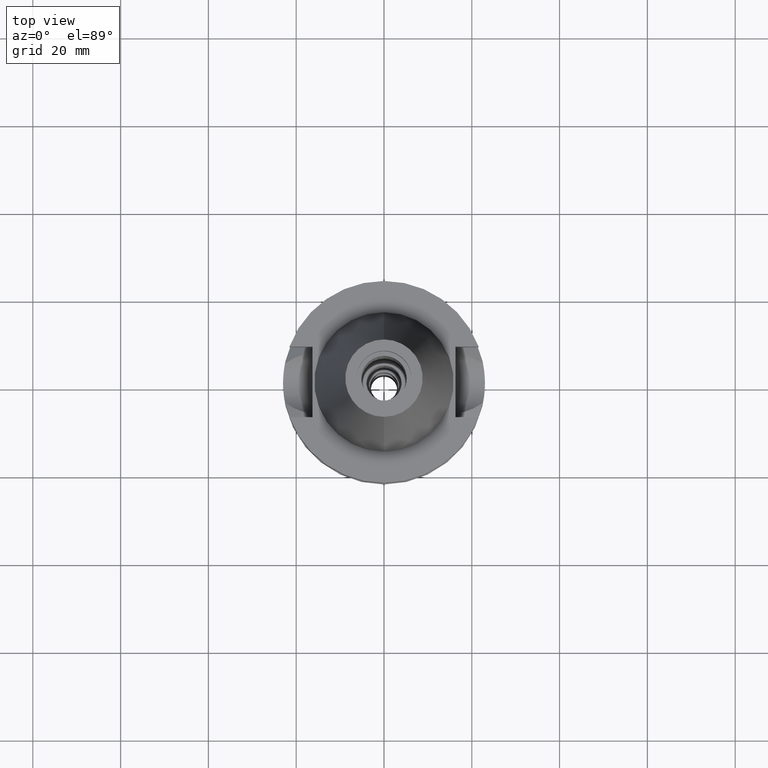
[diagram: clean part render]
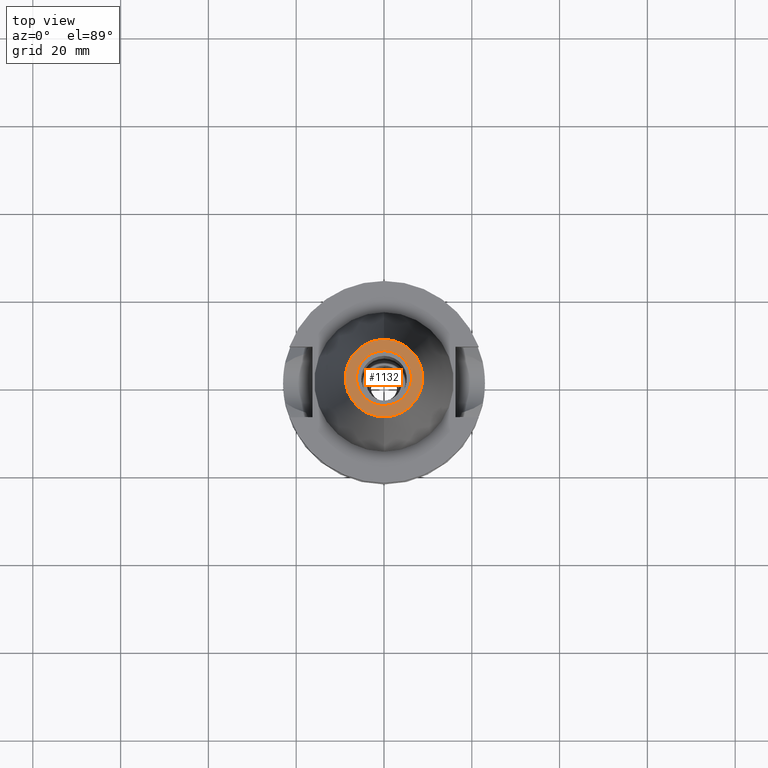
[diagram: same view with one face highlighted and labeled with its STEP entity id]
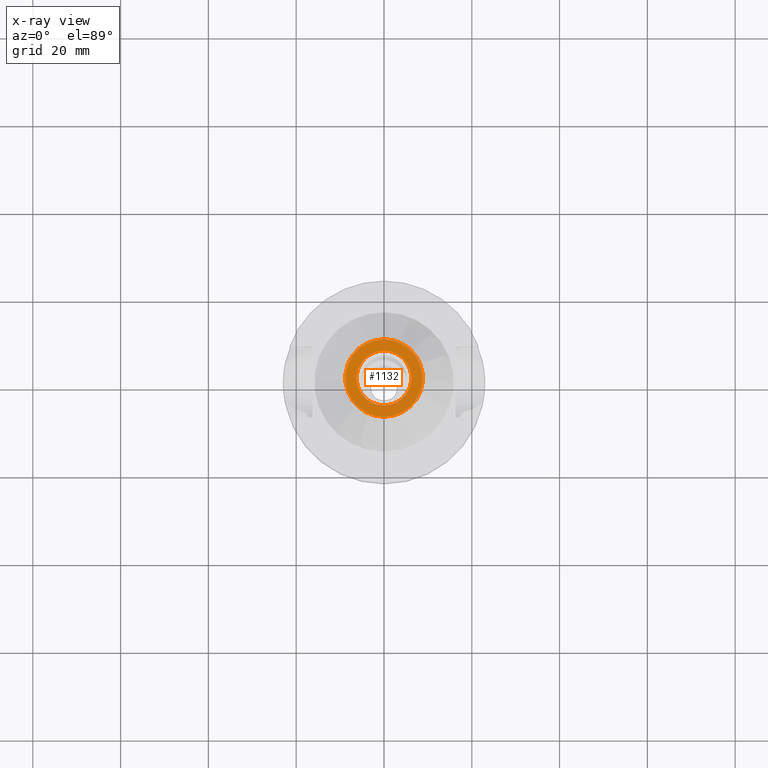
[diagram: x-ray of the same camera — body ghosted, the highlighted face saturated]
A machine part, top view. The second image highlights one B-rep face of the part: STEP entity #1132.
The next image is the same camera in x-ray: the body ghosted, the highlighted face saturated — about 0% of this face is hidden behind the body in this view.
In plain terms, the highlighted planar face has unit normal (0, 0, -1).
Its self-contained STEP definition (entity closure, byte-faithful):
#17=CARTESIAN_POINT('',(0.E0,1.521011324541E-14,4.84E1));
#18=DIRECTION('',(0.E0,0.E0,-1.E0));
#19=DIRECTION('',(0.E0,-1.E0,0.E0));
#20=AXIS2_PLACEMENT_3D('',#17,#18,#19);
#26=CARTESIAN_POINT('',(0.E0,1.521011324541E-14,4.84E1));
#27=DIRECTION('',(0.E0,0.E0,-1.E0));
#28=DIRECTION('',(0.E0,1.E0,0.E0));
#29=AXIS2_PLACEMENT_3D('',#26,#27,#28);
#34=CARTESIAN_POINT('',(0.E0,1.911306259429E-14,4.84E1));
#35=DIRECTION('',(0.E0,0.E0,1.E0));
#36=DIRECTION('',(0.E0,-1.E0,0.E0));
#37=AXIS2_PLACEMENT_3D('',#34,#35,#36);
#42=CARTESIAN_POINT('',(0.E0,1.911306259429E-14,4.84E1));
#43=DIRECTION('',(0.E0,0.E0,1.E0));
#44=DIRECTION('',(0.E0,1.E0,0.E0));
#45=AXIS2_PLACEMENT_3D('',#42,#43,#44);
#971=CARTESIAN_POINT('',(0.E0,-8.816791732783E0,4.84E1));
#972=CARTESIAN_POINT('',(0.E0,8.816791732783E0,4.84E1));
#973=VERTEX_POINT('',#971);
#974=VERTEX_POINT('',#972);
#975=CARTESIAN_POINT('',(0.E0,-6.25E0,4.84E1));
#976=CARTESIAN_POINT('',(0.E0,6.25E0,4.84E1));
#977=VERTEX_POINT('',#975);
#978=VERTEX_POINT('',#976);
#1115=CARTESIAN_POINT('',(0.E0,1.817375849935E-14,4.84E1));
#1116=DIRECTION('',(0.E0,0.E0,-1.E0));
#1117=DIRECTION('',(0.E0,-1.E0,0.E0));
#1118=AXIS2_PLACEMENT_3D('',#1115,#1116,#1117);
#1119=PLANE('',#1118);
#1121=ORIENTED_EDGE('',*,*,#1120,.T.);
#1123=ORIENTED_EDGE('',*,*,#1122,.T.);
#1124=EDGE_LOOP('',(#1121,#1123));
#1125=FACE_OUTER_BOUND('',#1124,.F.);
#1127=ORIENTED_EDGE('',*,*,#1126,.T.);
#1129=ORIENTED_EDGE('',*,*,#1128,.T.);
#1130=EDGE_LOOP('',(#1127,#1129));
#1131=FACE_BOUND('',#1130,.F.);
#21=CIRCLE('',#20,8.816791732783E0);
#30=CIRCLE('',#29,8.816791732783E0);
#38=CIRCLE('',#37,6.25E0);
#46=CIRCLE('',#45,6.25E0);
#1120=EDGE_CURVE('',#973,#974,#21,.T.);
#1122=EDGE_CURVE('',#974,#973,#30,.T.);
#1126=EDGE_CURVE('',#977,#978,#38,.T.);
#1128=EDGE_CURVE('',#978,#977,#46,.T.);
#1132=ADVANCED_FACE('',(#1125,#1131),#1119,.F.);